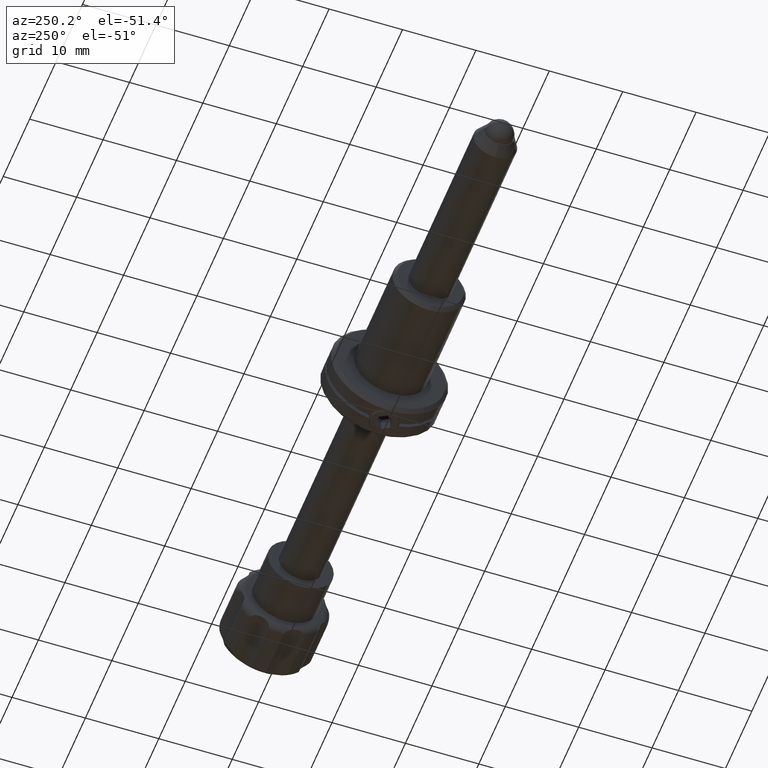
[diagram: clean part render]
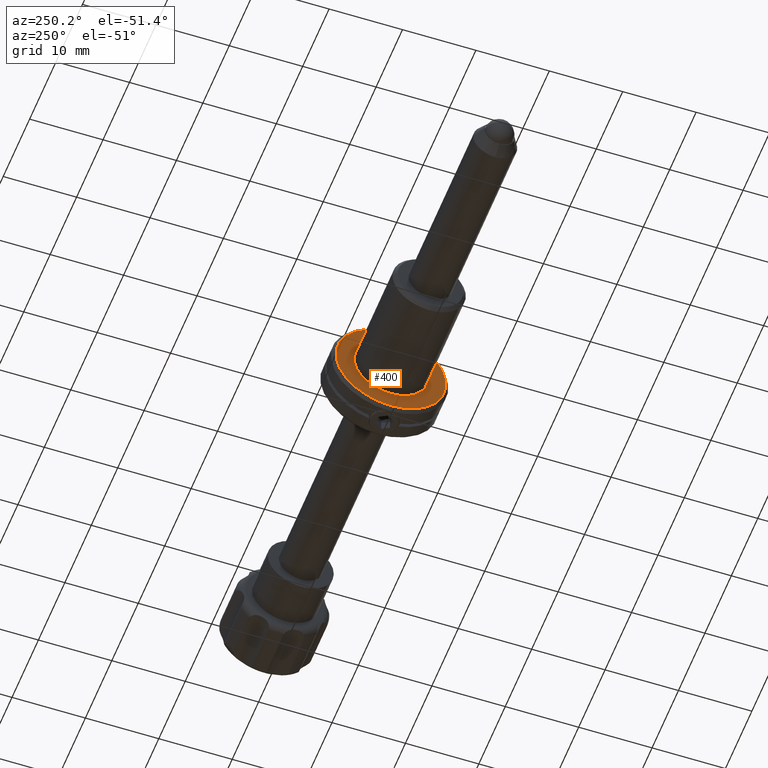
[diagram: same view with one face highlighted and labeled with its STEP entity id]
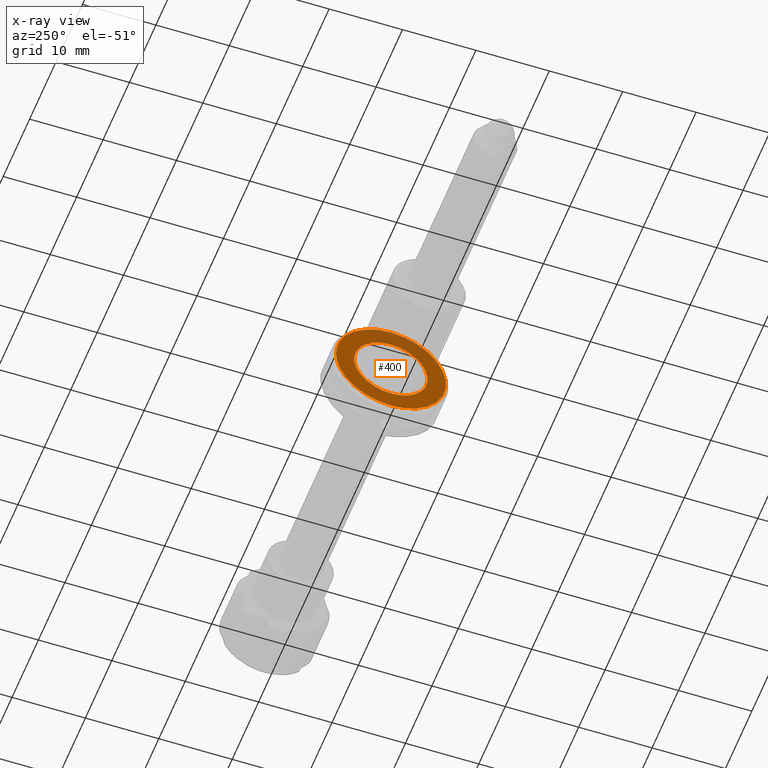
[diagram: x-ray of the same camera — body ghosted, the highlighted face saturated]
A machine part, auxiliary view. The second image highlights one B-rep face of the part: STEP entity #400.
The next image is the same camera in x-ray: the body ghosted, the highlighted face saturated — about 21% of this face is hidden behind the body in this view.
In plain terms, the highlighted planar face has unit normal (1, 0, 0).
Its self-contained STEP definition (entity closure, byte-faithful):
#240 = VERTEX_POINT ( 'NONE', #1505 ) ;
#400 = ADVANCED_FACE ( 'NONE', ( #1267, #2144 ), #4034, .F. ) ;
#412 = CIRCLE ( 'NONE', #3325, 7.499999999999997300 ) ;
#471 = AXIS2_PLACEMENT_3D ( 'NONE', #2131, #1468, #1427 ) ;
#523 = CARTESIAN_POINT ( 'NONE',  ( -0.04999999999999709500, 9.491012693391985800E-016, 7.499999999999997300 ) ) ;
#617 = DIRECTION ( 'NONE',  ( 0.0000000000000000000, 0.0000000000000000000, 1.000000000000000000 ) ) ;
#733 = CARTESIAN_POINT ( 'NONE',  ( -0.04999999999999709500, 0.0000000000000000000, 0.0000000000000000000 ) ) ;
#775 = AXIS2_PLACEMENT_3D ( 'NONE', #3171, #1241, #3487 ) ;
#839 = VERTEX_POINT ( 'NONE', #523 ) ;
#1067 = DIRECTION ( 'NONE',  ( 0.0000000000000000000, 0.0000000000000000000, -1.000000000000000000 ) ) ;
#1091 = EDGE_CURVE ( 'NONE', #240, #839, #412, .T. ) ;
#1241 = DIRECTION ( 'NONE',  ( -1.000000000000000000, -0.0000000000000000000, -0.0000000000000000000 ) ) ;
#1267 = FACE_OUTER_BOUND ( 'NONE', #2091, .T. ) ;
#1399 = VERTEX_POINT ( 'NONE', #3269 ) ;
#1427 = DIRECTION ( 'NONE',  ( 0.0000000000000000000, 0.0000000000000000000, -1.000000000000000000 ) ) ;
#1453 = EDGE_LOOP ( 'NONE', ( #4087, #3002 ) ) ;
#1468 = DIRECTION ( 'NONE',  ( 1.000000000000000000, 0.0000000000000000000, 0.0000000000000000000 ) ) ;
#1505 = CARTESIAN_POINT ( 'NONE',  ( -0.04999999999999709500, 0.0000000000000000000, -7.499999999999997300 ) ) ;
#1655 = CARTESIAN_POINT ( 'NONE',  ( -0.04999999999999449300, 6.123233995736766300E-016, -5.000000000000000000 ) ) ;
#1798 = DIRECTION ( 'NONE',  ( -1.000000000000000000, -0.0000000000000000000, -0.0000000000000000000 ) ) ;
#1945 = CIRCLE ( 'NONE', #2712, 5.000000000000000000 ) ;
#1956 = EDGE_CURVE ( 'NONE', #1399, #2771, #1945, .T. ) ;
#2091 = EDGE_LOOP ( 'NONE', ( #2685, #3321 ) ) ;
#2125 = CARTESIAN_POINT ( 'NONE',  ( -0.04999999999999709500, 0.0000000000000000000, 0.0000000000000000000 ) ) ;
#2131 = CARTESIAN_POINT ( 'NONE',  ( -0.04999999999999709500, 7.999999999999998200, 0.0000000000000000000 ) ) ;
#2138 = CIRCLE ( 'NONE', #775, 5.000000000000000000 ) ;
#2144 = FACE_BOUND ( 'NONE', #1453, .T. ) ;
#2685 = ORIENTED_EDGE ( 'NONE', *, *, #1091, .T. ) ;
#2712 = AXIS2_PLACEMENT_3D ( 'NONE', #3803, #4163, #617 ) ;
#2771 = VERTEX_POINT ( 'NONE', #1655 ) ;
#2853 = CIRCLE ( 'NONE', #3529, 7.499999999999997300 ) ;
#2889 = EDGE_CURVE ( 'NONE', #839, #240, #2853, .T. ) ;
#2995 = DIRECTION ( 'NONE',  ( -1.000000000000000000, -0.0000000000000000000, -0.0000000000000000000 ) ) ;
#3002 = ORIENTED_EDGE ( 'NONE', *, *, #3486, .F. ) ;
#3171 = CARTESIAN_POINT ( 'NONE',  ( -0.04999999999999449300, 0.0000000000000000000, 0.0000000000000000000 ) ) ;
#3269 = CARTESIAN_POINT ( 'NONE',  ( -0.04999999999999449300, 0.0000000000000000000, 5.000000000000000000 ) ) ;
#3321 = ORIENTED_EDGE ( 'NONE', *, *, #2889, .T. ) ;
#3325 = AXIS2_PLACEMENT_3D ( 'NONE', #2125, #1798, #3702 ) ;
#3486 = EDGE_CURVE ( 'NONE', #2771, #1399, #2138, .T. ) ;
#3487 = DIRECTION ( 'NONE',  ( 0.0000000000000000000, 0.0000000000000000000, 1.000000000000000000 ) ) ;
#3529 = AXIS2_PLACEMENT_3D ( 'NONE', #733, #2995, #1067 ) ;
#3702 = DIRECTION ( 'NONE',  ( 0.0000000000000000000, 0.0000000000000000000, -1.000000000000000000 ) ) ;
#3803 = CARTESIAN_POINT ( 'NONE',  ( -0.04999999999999449300, 0.0000000000000000000, 0.0000000000000000000 ) ) ;
#4034 = PLANE ( 'NONE',  #471 ) ;
#4087 = ORIENTED_EDGE ( 'NONE', *, *, #1956, .F. ) ;
#4163 = DIRECTION ( 'NONE',  ( -1.000000000000000000, -0.0000000000000000000, -0.0000000000000000000 ) ) ;